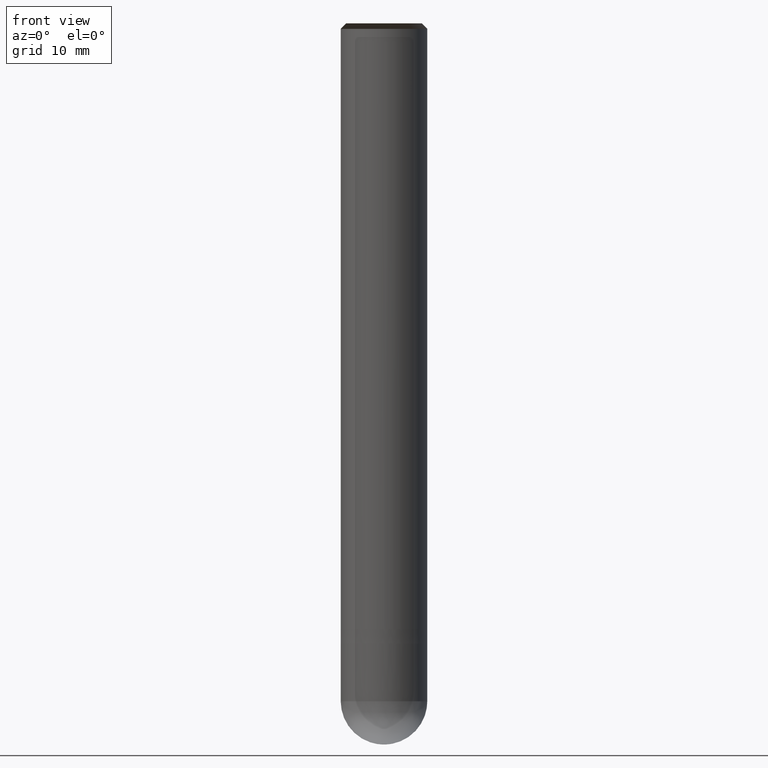
[diagram: clean part render]
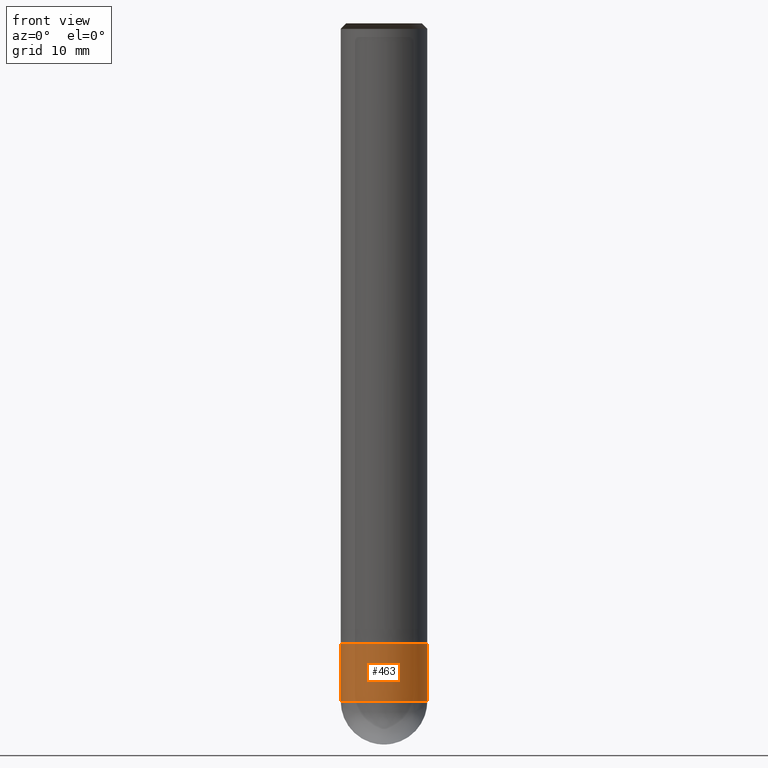
[diagram: same view with one face highlighted and labeled with its STEP entity id]
A machine part, front view. The second image highlights one B-rep face of the part: STEP entity #463.
In plain terms, the highlighted face is a freeform B-spline surface patch.
Its self-contained STEP definition (entity closure, byte-faithful):
#326=CARTESIAN_POINT('',(6.0,0.0,-10.0));
#330=CARTESIAN_POINT('',(-6.0,0.0,-10.0));
#331=CARTESIAN_POINT('',(6.0,0.0,-2.0));
#335=CARTESIAN_POINT('',(-6.0,0.0,-2.0));
#340=CARTESIAN_POINT('',(-6.0,-6.0,-10.0));
#341=CARTESIAN_POINT('',(0.0,-6.0,-10.0));
#342=CARTESIAN_POINT('',(6.0,-6.0,-10.0));
#343=CARTESIAN_POINT('',(-6.0,-6.0,-2.0));
#344=CARTESIAN_POINT('',(0.0,-6.0,-2.0));
#345=CARTESIAN_POINT('',(6.0,-6.0,-2.0));
#444=(
BOUNDED_SURFACE()
B_SPLINE_SURFACE(1,2,(
(#330,#340,#341,#342,#326),
(#335,#343,#344,#345,#331)
), .UNSPECIFIED.,.F.,.F.,.F.)
B_SPLINE_SURFACE_WITH_KNOTS((2,2),(3,2,3),(
0.0,1.0),(
0.0,0.5,1.0), .UNSPECIFIED.)
GEOMETRIC_REPRESENTATION_ITEM()
RATIONAL_B_SPLINE_SURFACE(((1.0,0.707106781187,1.0,0.707106781187,1.0),
(1.0,0.707106781187,1.0,0.707106781187,1.0)
))
REPRESENTATION_ITEM('')
SURFACE()
);
#445=(
BOUNDED_CURVE()
B_SPLINE_CURVE(2,(#326,#342,#341,#340,#330),.UNSPECIFIED.,.F.,.F.)
B_SPLINE_CURVE_WITH_KNOTS((3,2,3),
(0.0,0.5,1.0),.UNSPECIFIED.)
CURVE()
GEOMETRIC_REPRESENTATION_ITEM()
RATIONAL_B_SPLINE_CURVE((1.0,0.707106781187,1.0,0.707106781187,1.0))
REPRESENTATION_ITEM('')
);
#446=(
BOUNDED_CURVE()
B_SPLINE_CURVE(1,(#330,#335),.UNSPECIFIED.,.F.,.F.)
B_SPLINE_CURVE_WITH_KNOTS((2,2),
(0.0,1.0),.UNSPECIFIED.)
CURVE()
GEOMETRIC_REPRESENTATION_ITEM()
RATIONAL_B_SPLINE_CURVE((1.0,1.0))
REPRESENTATION_ITEM('')
);
#447=(
BOUNDED_CURVE()
B_SPLINE_CURVE(2,(#335,#343,#344,#345,#331),.UNSPECIFIED.,.F.,.F.)
B_SPLINE_CURVE_WITH_KNOTS((3,2,3),
(0.0,0.5,1.0),.UNSPECIFIED.)
CURVE()
GEOMETRIC_REPRESENTATION_ITEM()
RATIONAL_B_SPLINE_CURVE((1.0,0.707106781187,1.0,0.707106781187,1.0))
REPRESENTATION_ITEM('')
);
#448=(
BOUNDED_CURVE()
B_SPLINE_CURVE(1,(#331,#326),.UNSPECIFIED.,.F.,.F.)
B_SPLINE_CURVE_WITH_KNOTS((2,2),
(0.0,1.0),.UNSPECIFIED.)
CURVE()
GEOMETRIC_REPRESENTATION_ITEM()
RATIONAL_B_SPLINE_CURVE((1.0,1.0))
REPRESENTATION_ITEM('')
);
#449=VERTEX_POINT('',#326);
#450=VERTEX_POINT('',#330);
#451=VERTEX_POINT('',#331);
#452=VERTEX_POINT('',#335);
#453=EDGE_CURVE('',#449,#450,#445,.T.);
#454=EDGE_CURVE('',#450,#452,#446,.T.);
#455=EDGE_CURVE('',#452,#451,#447,.T.);
#456=EDGE_CURVE('',#451,#449,#448,.T.);
#457=ORIENTED_EDGE('',*,*,#453,.T.);
#458=ORIENTED_EDGE('',*,*,#454,.T.);
#459=ORIENTED_EDGE('',*,*,#455,.T.);
#460=ORIENTED_EDGE('',*,*,#456,.T.);
#461=EDGE_LOOP('',(#457,#458,#459,#460));
#462=FACE_OUTER_BOUND('',#461,.T.);
#463=ADVANCED_FACE('',(#462),#444,.T.);